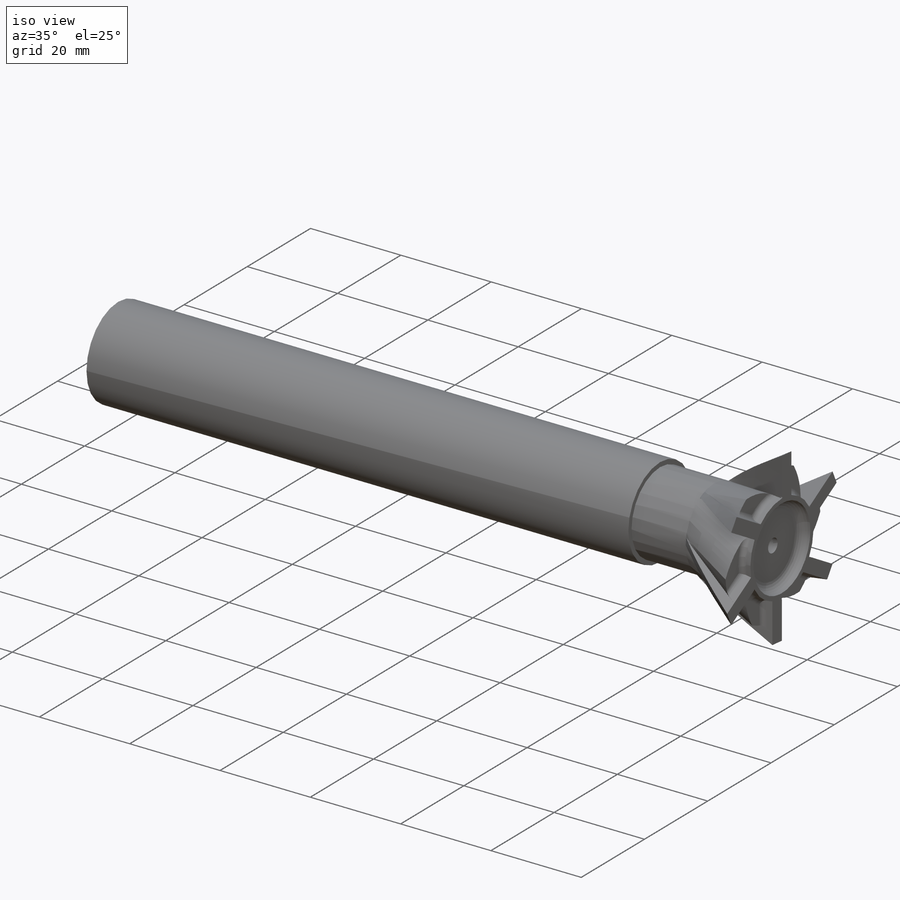
[diagram: iso view]
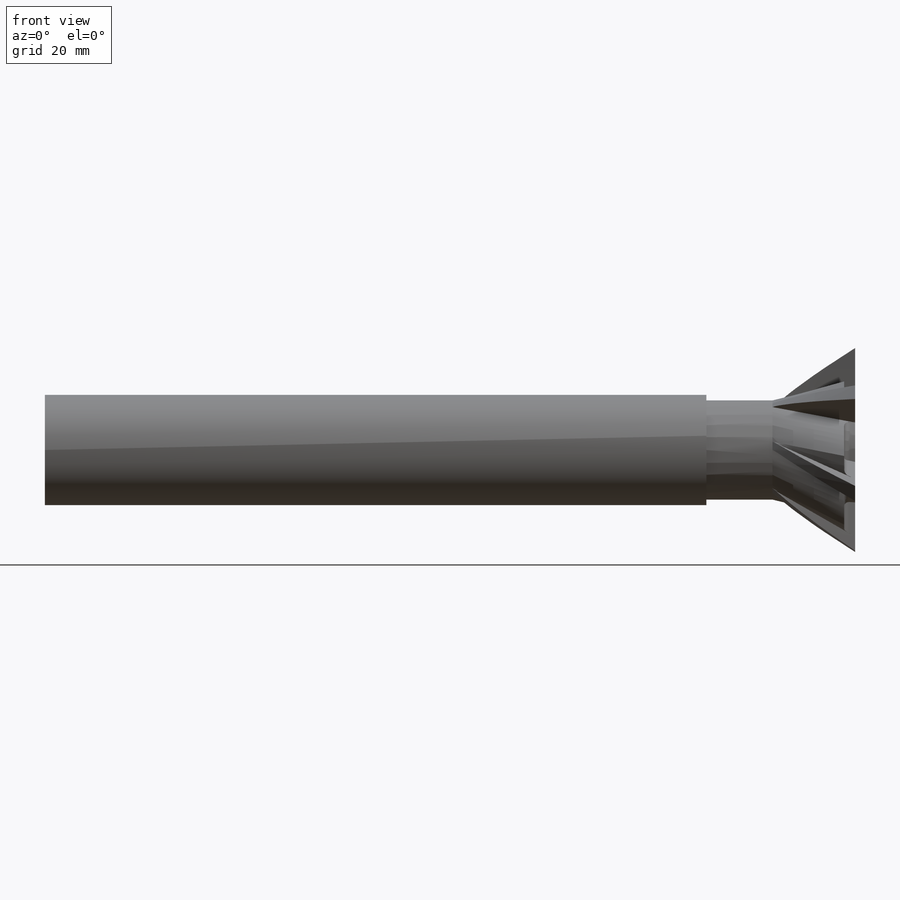
[diagram: front view]
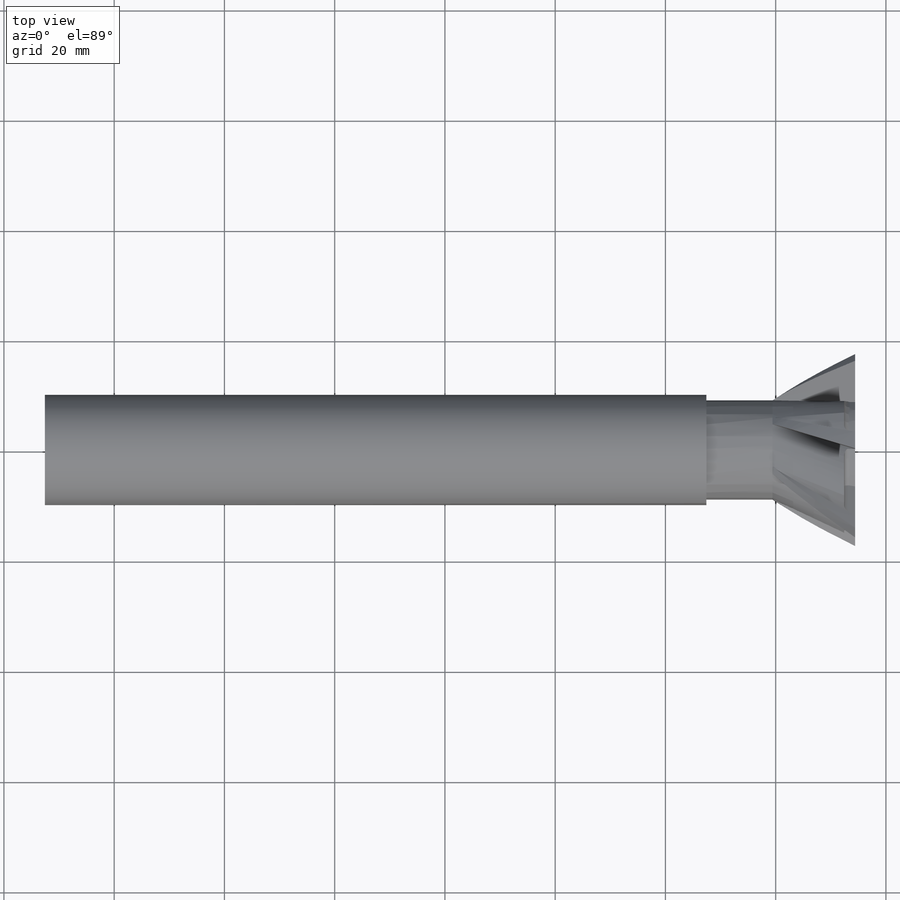
[diagram: top view]
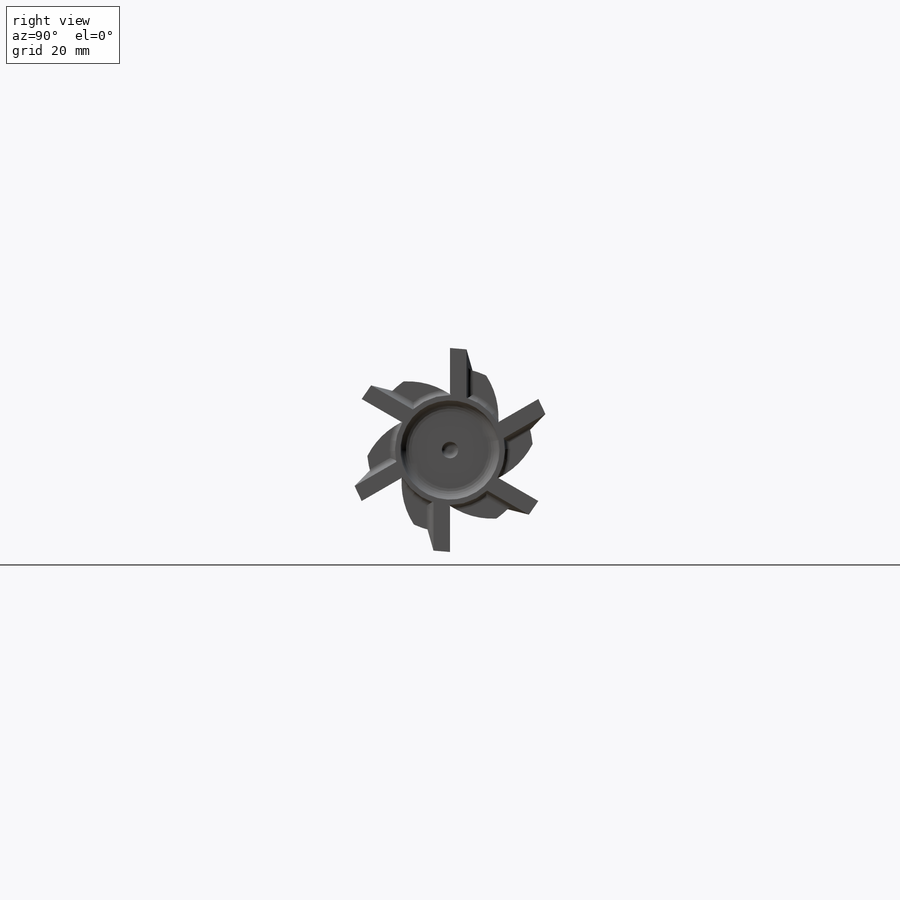
[diagram: right view]
SOLIDWORKS PART (.sldprt)
format: sldprt  version: not decoded by parser v0  size: 562,688 bytes
history: native  units: mm
features: sketch x8, plane x4, cut_extrude x3, fillet x3, pattern_circular x2, material x1, revolve x1 (+10 scaffold rows collapsed)
feature tree (32):
  scaffold x10  (default folders/planes/origin — collapsed)
  material  "材质 <未指定>"
  plane  "前视基准面"
  plane  "上视基准面"
  plane  "右视基准面"
  sketch  "草图1"  dims[D1=120.0mm D2=10.0mm D3=9.0mm D4=12.0mm D5=15.0mm D6=18.5mm]
  revolve  "旋转1"  Angle=360deg
  sketch  "草图2"  dims[c1.D1=32.0mm c1.D2=20.0mm c1.D5=20.0mm c1.D3=~49.416006mm c2.D3=60.0deg c2.D4=4.0mm c3.D3=~22.352881mm c4.D3=60.0deg c4.D4=3.0mm]
  sketch  "草图3"  dims[D1=10.0mm]
  plane  "基准面1"  Offset=15mm
  sketch  "草图5"  dims[c1.D1=18.0mm c1.D2=~11.86874mm c2.D2=30.0deg c2.D3=~10.356831mm c3.D3=~35.305476deg c4.D3=~15.53161mm c5.D3=35.31deg c5.D4=~10.356831mm c6.D4=30.0deg c6.D5=16.0mm c7.D5=~49.193077deg c8.D5=~15.811183mm c9.D5=35.31deg c10.D5=~17.964198mm c11.D5=49.19deg c11.D6=~18.356816mm c12.D6=~50.59413deg c13.D6=~15.811183mm c14.D6=50.59deg]
  sketch  "草图6"
  pattern_circular  "阵列(圆周)1"  Count=6 Angle=60deg
  sketch  "草图7"
  cut_extrude  "切除-拉伸1"  Depth=2mm
  fillet  "圆角1"  Radius=2mm
  sketch  "草图8"  dims[D1=3.0mm]
  cut_extrude  "切除-拉伸2"  Depth=2mm
  fillet  "圆角2"  Radius=1mm
  sketch  "草图9"  dims[D2=~14.626541mm D1=0.2mm]
  cut_extrude  "切除-拉伸3"  Depth=2mm
  fillet  "圆角3"  Radius=1mm
  pattern_circular  "阵列(圆周)2"  Count=6 Angle=60deg
decode coverage: 15 of 17 modeling features carry decoded parameters
note: ~ marks probable driven/reference dimensions
note: suppression state not decoded; provenance and decode notes live in map.json
